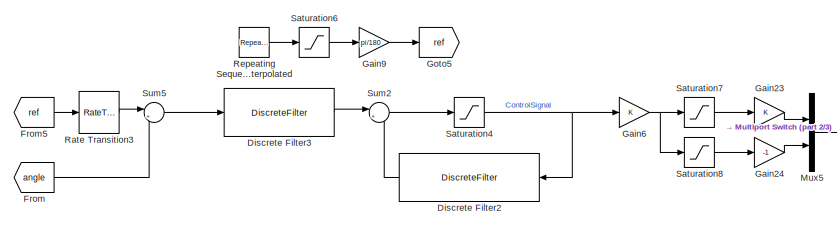
[diagram: root canvas - part 1/3, top left region]
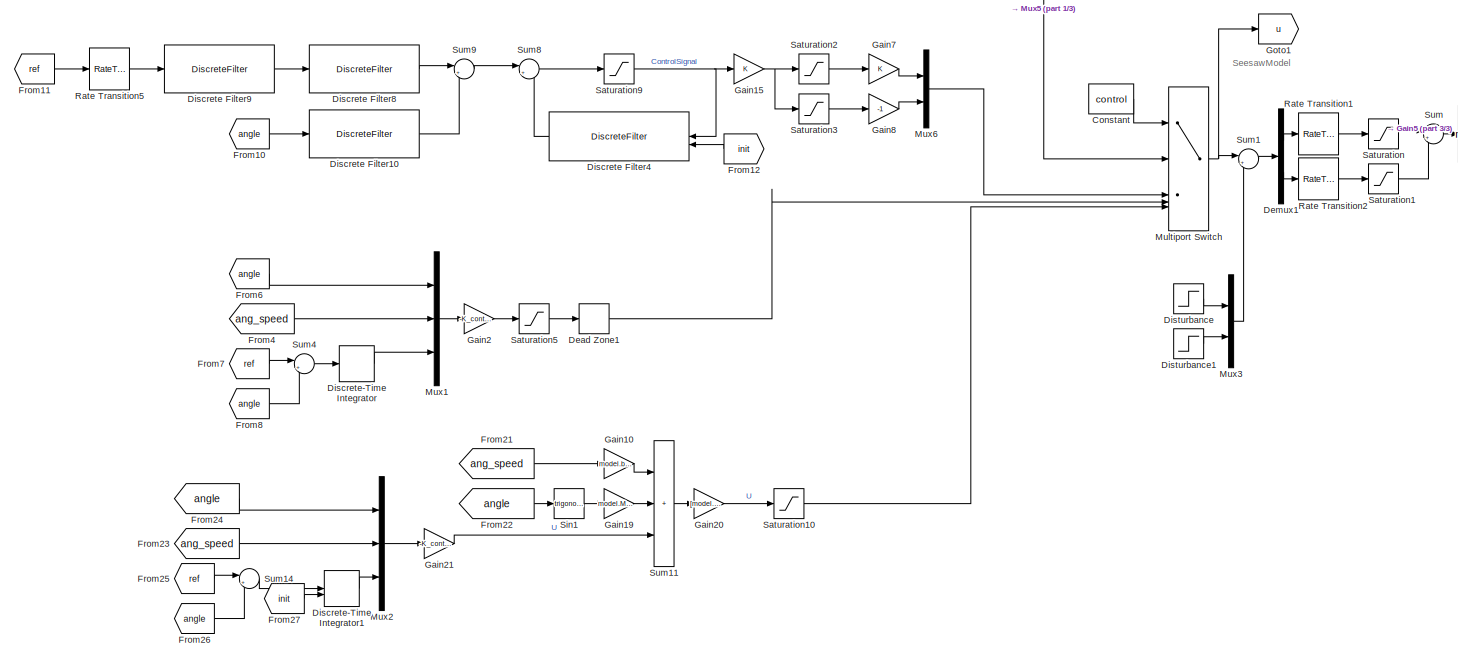
[diagram: root canvas - part 2/3, central region]
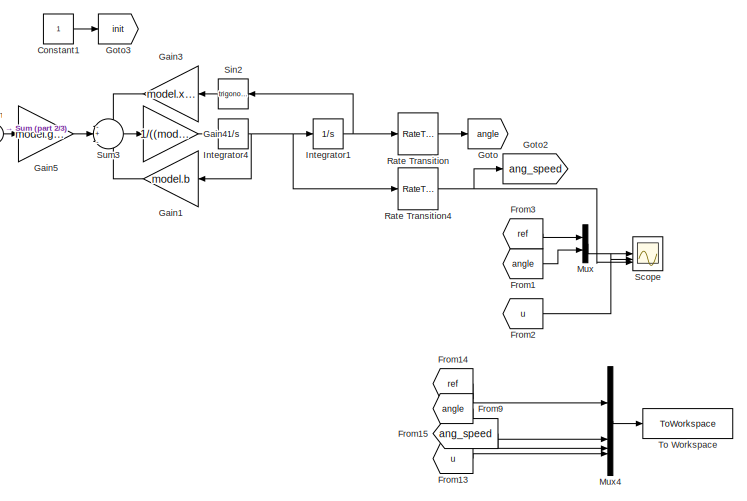
[diagram: root canvas - part 3/3, middle right region]
MODEL slx_2f2a04086c4d
KIND model
CONFIG AbsTol = auto
CONFIG EnableMultiTasking = off
CONFIG FixedStep = auto
CONFIG MaxStep = auto
CONFIG MinStep = auto
CONFIG RelTol = 1e-3
CONFIG SampleTimeConstraint = Unconstrained
CONFIG SolverName = VariableStepAuto
CONFIG StartTime = 0.0
CONFIG StopTime = tsim
BLOCK [Constant] Constant
  Value = control
BLOCK [Constant] Constant1
BLOCK [DeadZone] Dead Zone1
  LowerValue = -0
  UpperValue = 0
BLOCK [Demux] Demux1
  Outputs = 2
BLOCK [DiscreteFilter] Discrete Filter10
  Denominator = 1
  InputPortMap = u0
  Numerator = R
BLOCK [DiscreteFilter] Discrete Filter2
  Denominator = 1
  InputPortMap = u0
  NameLocation = top
  Numerator = [1 0 0]-conv([1 s1_meq],[1 -1])
BLOCK [DiscreteFilter] Discrete Filter3
  Denominator = 1
  InputPortMap = u0
  Numerator = [r0_meq(1) r1_meq(1) r2_meq(1)]
BLOCK [DiscreteFilter] Discrete Filter4
  Denominator = 1
  ExternalReset = Rising
  InputPortMap = u0,r7
  NameLocation = top
  Numerator = [1 0 0]-conv([1 s1_meq],[1 -1])
BLOCK [DiscreteFilter] Discrete Filter8
  Denominator = 1
  InputPortMap = u0
  Numerator = T
BLOCK [DiscreteFilter] Discrete Filter9
  Denominator = den_mf_track
  InputPortMap = u0
  Numerator = num_mf_track
BLOCK [DiscreteIntegrator] Discrete-Time Integrator
  ICPrevOutput = DiscIntNeverNeededParam
  ICPrevScaledInput = DiscIntNeverNeededParam
  InitialConditionSetting = Auto
  SampleTime = -1
BLOCK [DiscreteIntegrator] Discrete-Time Integrator1
  ExternalReset = rising
  ICPrevOutput = DiscIntNeverNeededParam
  ICPrevScaledInput = DiscIntNeverNeededParam
  InitialConditionSetting = Auto
  SampleTime = -1
BLOCK [Step] Disturbance
  After = 0.04
  SampleTime = 0
  Time = 5+15
BLOCK [Step] Disturbance1
  After = 0.04
  SampleTime = 0
  Time = 20+15
BLOCK [From] From
  GotoTag = angle
BLOCK [From] From1
  GotoTag = angle
BLOCK [From] From10
  GotoTag = angle
BLOCK [From] From11
  GotoTag = ref
BLOCK [From] From12
  GotoTag = init
  NameLocation = top
BLOCK [From] From13
  GotoTag = u
BLOCK [From] From14
  GotoTag = ref
BLOCK [From] From15
  GotoTag = ang_speed
BLOCK [From] From2
  GotoTag = u
BLOCK [From] From21
  GotoTag = ang_speed
BLOCK [From] From22
  GotoTag = angle
BLOCK [From] From23
  GotoTag = ang_speed
BLOCK [From] From24
  GotoTag = angle
BLOCK [From] From25
  GotoTag = ref
BLOCK [From] From26
  GotoTag = angle
BLOCK [From] From27
  GotoTag = init
BLOCK [From] From3
  GotoTag = ref
BLOCK [From] From4
  GotoTag = ang_speed
BLOCK [From] From5
  GotoTag = ref
BLOCK [From] From6
  GotoTag = angle
BLOCK [From] From7
  GotoTag = ref
BLOCK [From] From8
  GotoTag = angle
BLOCK [From] From9
  GotoTag = angle
BLOCK [Gain] Gain1
  Gain = model.b
  NameLocation = top
BLOCK [Gain] Gain10
  Gain = model.b/model.J
BLOCK [Gain] Gain15
BLOCK [Gain] Gain19
  Gain = model.M*model.g*model.x/model.J
BLOCK [Gain] Gain2
  Gain = -K_controller
  Multiplication = Matrix(K*u)
BLOCK [Gain] Gain20
  Gain = [model.J/model.gain -model.J/model.gain]
BLOCK [Gain] Gain21
  Gain = -K_controller2
  Multiplication = Matrix(K*u)
BLOCK [Gain] Gain23
BLOCK [Gain] Gain24
  Gain = -1
BLOCK [Gain] Gain3
  Gain = model.x*model.g*model.M
  NameLocation = top
BLOCK [Gain] Gain4
  Gain = 1/((model.M*(2*model.L)^2)/12)
BLOCK [Gain] Gain5
  Gain = model.gain
BLOCK [Gain] Gain6
BLOCK [Gain] Gain7
BLOCK [Gain] Gain8
  Gain = -1
BLOCK [Gain] Gain9
  Gain = pi/180
BLOCK [Goto] Goto
  GotoTag = angle
BLOCK [Goto] Goto1
  GotoTag = u
BLOCK [Goto] Goto2
  GotoTag = ang_speed
BLOCK [Goto] Goto3
  GotoTag = init
BLOCK [Goto] Goto5
  GotoTag = ref
BLOCK [Integrator] Integrator1
  WrapState = on
BLOCK [Integrator] Integrator4
BLOCK [MultiPortSwitch] Multiport Switch
  InputSameDT = off
  Inputs = 4
  SaturateOnIntegerOverflow = off
BLOCK [Mux] Mux
  DisplayOption = bar
  Inputs = 2
BLOCK [Mux] Mux1
  DisplayOption = bar
  Inputs = 3
BLOCK [Mux] Mux2
  DisplayOption = bar
  Inputs = 3
BLOCK [Mux] Mux3
  DisplayOption = bar
  Inputs = 2
BLOCK [Mux] Mux4
  DisplayOption = bar
BLOCK [Mux] Mux5
  DisplayOption = bar
  Inputs = 2
BLOCK [Mux] Mux6
  DisplayOption = bar
  Inputs = 2
BLOCK [RateTransition] Rate Transition
  OutPortSampleTime = Ts
BLOCK [RateTransition] Rate Transition1
BLOCK [RateTransition] Rate Transition2
BLOCK [RateTransition] Rate Transition3
BLOCK [RateTransition] Rate Transition4
  OutPortSampleTime = Ts
BLOCK [RateTransition] Rate Transition5
BLOCK [Reference] Repeating Sequence Interpolated  REF=simulink/Sources/Repeating
Sequence
Interpolated
  SourceBlock = simulink/Sources/Repeating\nSequence\nInterpolated
  SourceType = Repeating Sequence Interpolated
BLOCK [Saturate] Saturation
  LowerLimit = 0
  UpperLimit = 1
BLOCK [Saturate] Saturation1
  LowerLimit = 0
  UpperLimit = 1
BLOCK [Saturate] Saturation10
  LowerLimit = 0
  UpperLimit = 1
BLOCK [Saturate] Saturation2
  LowerLimit = 0
  UpperLimit = 1
BLOCK [Saturate] Saturation3
  LowerLimit = -1
  UpperLimit = 0
BLOCK [Saturate] Saturation4
  LowerLimit = -1
  UpperLimit = 1
BLOCK [Saturate] Saturation5
  LowerLimit = 0
  UpperLimit = 1
BLOCK [Saturate] Saturation6
  LowerLimit = -140
  UpperLimit = 140
BLOCK [Saturate] Saturation7
  LowerLimit = 0
  UpperLimit = 1
BLOCK [Saturate] Saturation8
  LowerLimit = -1
  UpperLimit = 0
BLOCK [Saturate] Saturation9
  LowerLimit = -1
  UpperLimit = 1
BLOCK [Scope] Scope
  Floating = off
  NumInputPorts = 3
  ScopeSpecificationString = Simulink.scopes.TimeScopeBlockCfg('CurrentConfiguration', extmgr.ConfigurationSet(extmgr.Configuration('Core','General UI',true),extmgr.Configuration('Core','Source UI',true),extmgr.Configuration('Sources','WiredSimulink',true,'DataLoggingVariableName','ScopeData1'),extmgr.Configuration('Visuals','Time Domain',true,'SerializedDisplays',{struct('MinYLimReal','-0.65557','MaxYLimReal','0.66419','YLab...<+3185ch>
BLOCK [Trigonometry] Sin1
BLOCK [Trigonometry] Sin2
  NameLocation = top
BLOCK [Sum] Sum
  Inputs = |+-
  OutDataTypeStr = double
BLOCK [Sum] Sum1
  Inputs = |++
BLOCK [Sum] Sum11
  IconShape = rectangular
  Inputs = +++
BLOCK [Sum] Sum14
  Inputs = |+-
BLOCK [Sum] Sum2
  Inputs = |++
BLOCK [Sum] Sum3
  Inputs = -+-
BLOCK [Sum] Sum4
  Inputs = |+-
BLOCK [Sum] Sum5
  Inputs = |+-
BLOCK [Sum] Sum8
  Inputs = |++
  OutDataTypeStr = single
BLOCK [Sum] Sum9
  Inputs = |+-
  OutDataTypeStr = Inherit: Inherit via back propagation
BLOCK [ToWorkspace] To Workspace
  FixptAsFi = on
  MaxDataPoints = inf
  SampleTime = Ts
  SaveFormat = Structure With Time
  VariableName = ensaio_sim
ANNOTATION (root): SeesawModel
LINE Constant1:1 -> Goto3:1
LINE Constant:1 -> Multiport Switch:1
LINE Dead Zone1:1 -> Multiport Switch:4
LINE Demux1:1 -> Rate Transition1:1
LINE Demux1:2 -> Rate Transition2:1
LINE Discrete Filter10:1 -> Sum9:2
LINE Discrete Filter2:1 -> Sum2:2
LINE Discrete Filter3:1 -> Sum2:1
LINE Discrete Filter4:1 -> Sum8:2
LINE Discrete Filter8:1 -> Sum9:1
LINE Discrete Filter9:1 -> Discrete Filter8:1
LINE Discrete-Time Integrator1:1 -> Mux2:3
LINE Discrete-Time Integrator:1 -> Mux1:3
LINE Disturbance1:1 -> Mux3:2
LINE Disturbance:1 -> Mux3:1
LINE From10:1 -> Discrete Filter10:1
LINE From11:1 -> Rate Transition5:1
LINE From12:1 -> Discrete Filter4:2
LINE From13:1 -> Mux4:4
LINE From14:1 -> Mux4:1
LINE From15:1 -> Mux4:3
LINE From1:1 -> Mux:2
LINE From21:1 -> Gain10:1
LINE From22:1 -> Sin1:1
LINE From23:1 -> Mux2:2
LINE From24:1 -> Mux2:1
LINE From25:1 -> Sum14:1
LINE From26:1 -> Sum14:2
LINE From27:1 -> Discrete-Time Integrator1:2
LINE From2:1 -> Scope:2
LINE From3:1 -> Mux:1
LINE From4:1 -> Mux1:2
LINE From5:1 -> Rate Transition3:1
LINE From6:1 -> Mux1:1
LINE From7:1 -> Sum4:1
LINE From8:1 -> Sum4:2
LINE From9:1 -> Mux4:2
LINE From:1 -> Sum5:2
LINE Gain10:1 -> Sum11:1
NET Gain15:1 -> Saturation2:1, Saturation3:1
LINE Gain19:1 -> Sum11:2
LINE Gain1:1 -> Sum3:3
LINE Gain20:1 -> Saturation10:1
LINE Gain21:1 -> Sum11:3
LINE Gain23:1 -> Mux5:1
LINE Gain24:1 -> Mux5:2
LINE Gain2:1 -> Saturation5:1
LINE Gain3:1 -> Sum3:1
LINE Gain4:1 -> Integrator4:1
LINE Gain5:1 -> Sum3:2
NET Gain6:1 -> Saturation7:1, Saturation8:1
LINE Gain7:1 -> Mux6:1
LINE Gain8:1 -> Mux6:2
LINE Gain9:1 -> Goto5:1
NET Integrator1:1 -> Rate Transition:1, Sin2:1
NET Integrator4:1 -> Gain1:1, Integrator1:1, Rate Transition4:1
NET Multiport Switch:1 -> Goto1:1, Sum1:1
LINE Mux1:1 -> Gain2:1
LINE Mux2:1 -> Gain21:1
LINE Mux3:1 -> Sum1:2
LINE Mux4:1 -> To Workspace:1
LINE Mux5:1 -> Multiport Switch:2
LINE Mux6:1 -> Multiport Switch:3
LINE Mux:1 -> Scope:1
LINE Rate Transition1:1 -> Saturation:1
LINE Rate Transition2:1 -> Saturation1:1
LINE Rate Transition3:1 -> Sum5:1
NET Rate Transition4:1 -> Goto2:1, Scope:3
LINE Rate Transition5:1 -> Discrete Filter9:1
LINE Rate Transition:1 -> Goto:1
LINE Repeating Sequence Interpolated:1 -> Saturation6:1
LINE Saturation10:1 -> Multiport Switch:5
LINE Saturation1:1 -> Sum:2
LINE Saturation2:1 -> Gain7:1
LINE Saturation3:1 -> Gain8:1
NET Saturation4:1 -> Discrete Filter2:1, Gain6:1
LINE Saturation5:1 -> Dead Zone1:1
LINE Saturation6:1 -> Gain9:1
LINE Saturation7:1 -> Gain23:1
LINE Saturation8:1 -> Gain24:1
NET Saturation9:1 -> Discrete Filter4:1, Gain15:1
LINE Saturation:1 -> Sum:1
LINE Sin1:1 -> Gain19:1
LINE Sin2:1 -> Gain3:1
LINE Sum11:1 -> Gain20:1
LINE Sum14:1 -> Discrete-Time Integrator1:1
LINE Sum1:1 -> Demux1:1
LINE Sum2:1 -> Saturation4:1
LINE Sum3:1 -> Gain4:1
LINE Sum4:1 -> Discrete-Time Integrator:1
LINE Sum5:1 -> Discrete Filter3:1
LINE Sum8:1 -> Saturation9:1
LINE Sum9:1 -> Sum8:1
LINE Sum:1 -> Gain5:1
note: NET lines group one-source signal fan-out (src -> all destinations, sorted); 1:1 wires keep LINE
